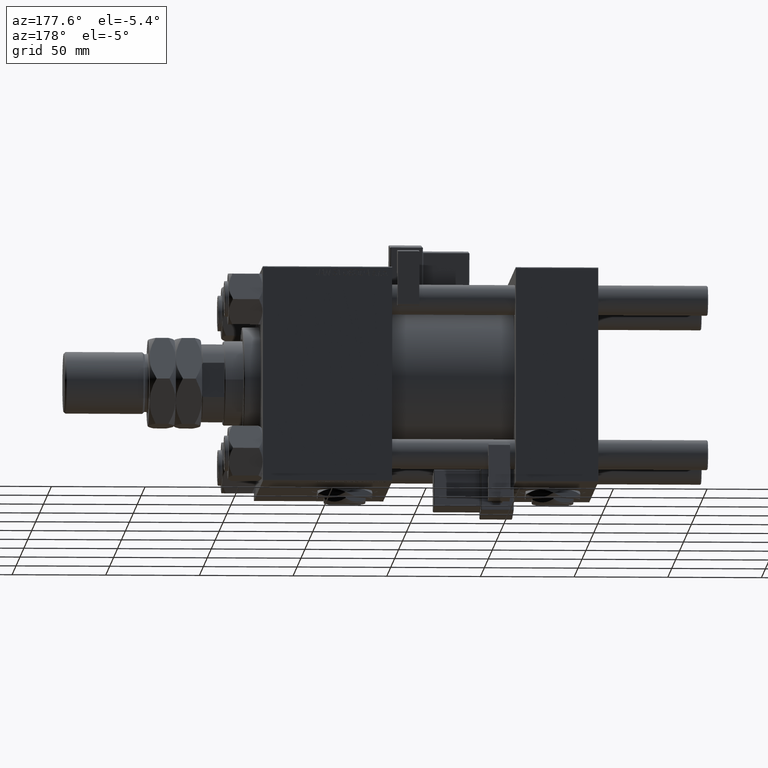
[diagram: clean part render]
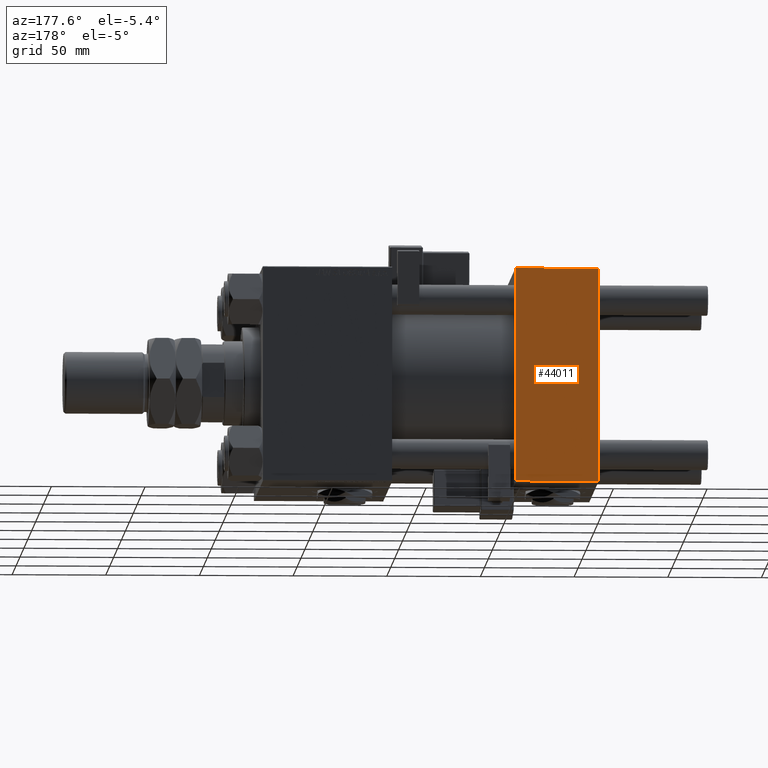
[diagram: same view with one face highlighted and labeled with its STEP entity id]
A machine part, auxiliary view. The second image highlights one B-rep face of the part: STEP entity #44011.
In plain terms, the highlighted planar face has unit normal (0, 1, 0).
Its self-contained STEP definition (entity closure, byte-faithful):
#545 = DIRECTION ( 'NONE',  ( 1.000000000000000000, 0.000000000000000000, 0.000000000000000000 ) ) ;
#605 = EDGE_CURVE ( 'NONE', #34426, #52773, #4552, .T. ) ;
#4552 = LINE ( 'NONE', #18221, #17020 ) ;
#4781 = VECTOR ( 'NONE', #49389, 1000.000000000000000 ) ;
#5382 = CARTESIAN_POINT ( 'NONE',  ( 44.00000000000000000, 57.49999999999999289, 57.00000000000003553 ) ) ;
#6904 = VERTEX_POINT ( 'NONE', #15754 ) ;
#9294 = CARTESIAN_POINT ( 'NONE',  ( 0.000000000000000000, 57.49999999999999289, -57.00000000000000711 ) ) ;
#15744 = EDGE_LOOP ( 'NONE', ( #18593, #30287, #32584, #16362 ) ) ;
#15754 = CARTESIAN_POINT ( 'NONE',  ( 44.00000000000000000, 57.49999999999999289, 57.00000000000003553 ) ) ;
#16362 = ORIENTED_EDGE ( 'NONE', *, *, #27757, .T. ) ;
#16516 = DIRECTION ( 'NONE',  ( 0.000000000000000000, 0.000000000000000000, -1.000000000000000000 ) ) ;
#17020 = VECTOR ( 'NONE', #30758, 1000.000000000000000 ) ;
#17605 = PLANE ( 'NONE',  #19587 ) ;
#18221 = CARTESIAN_POINT ( 'NONE',  ( 44.00000000000000000, 57.49999999999999289, -57.00000000000000711 ) ) ;
#18365 = LINE ( 'NONE', #27198, #4781 ) ;
#18593 = ORIENTED_EDGE ( 'NONE', *, *, #44239, .T. ) ;
#19587 = AXIS2_PLACEMENT_3D ( 'NONE', #48918, #40097, #52613 ) ;
#20292 = VECTOR ( 'NONE', #545, 1000.000000000000000 ) ;
#23317 = LINE ( 'NONE', #5382, #20292 ) ;
#26521 = EDGE_CURVE ( 'NONE', #40273, #52773, #18365, .T. ) ;
#27198 = CARTESIAN_POINT ( 'NONE',  ( 0.000000000000000000, 57.49999999999999289, 57.50000000000000711 ) ) ;
#27757 = EDGE_CURVE ( 'NONE', #40273, #6904, #23317, .T. ) ;
#28347 = FACE_OUTER_BOUND ( 'NONE', #15744, .T. ) ;
#30287 = ORIENTED_EDGE ( 'NONE', *, *, #605, .T. ) ;
#30758 = DIRECTION ( 'NONE',  ( -1.000000000000000000, 0.000000000000000000, 0.000000000000000000 ) ) ;
#32584 = ORIENTED_EDGE ( 'NONE', *, *, #26521, .F. ) ;
#34426 = VERTEX_POINT ( 'NONE', #54853 ) ;
#34767 = CARTESIAN_POINT ( 'NONE',  ( 0.000000000000000000, 57.49999999999999289, 57.00000000000003553 ) ) ;
#40097 = DIRECTION ( 'NONE',  ( -0.000000000000000000, 1.000000000000000000, 0.000000000000000000 ) ) ;
#40273 = VERTEX_POINT ( 'NONE', #34767 ) ;
#40538 = VECTOR ( 'NONE', #16516, 1000.000000000000000 ) ;
#44011 = ADVANCED_FACE ( 'NONE', ( #28347 ), #17605, .T. ) ;
#44239 = EDGE_CURVE ( 'NONE', #6904, #34426, #55789, .T. ) ;
#46433 = CARTESIAN_POINT ( 'NONE',  ( 44.00000000000000000, 57.49999999999999289, 57.50000000000000711 ) ) ;
#48918 = CARTESIAN_POINT ( 'NONE',  ( 44.00000000000000000, 57.49999999999999289, 57.50000000000000711 ) ) ;
#49389 = DIRECTION ( 'NONE',  ( 0.000000000000000000, 0.000000000000000000, -1.000000000000000000 ) ) ;
#52613 = DIRECTION ( 'NONE',  ( 0.000000000000000000, -0.000000000000000000, 1.000000000000000000 ) ) ;
#52773 = VERTEX_POINT ( 'NONE', #9294 ) ;
#54853 = CARTESIAN_POINT ( 'NONE',  ( 44.00000000000000000, 57.49999999999999289, -57.00000000000000711 ) ) ;
#55789 = LINE ( 'NONE', #46433, #40538 ) ;